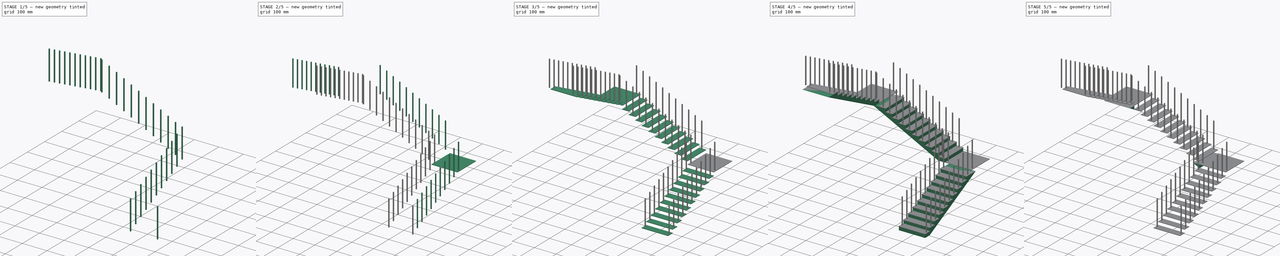
[diagram: build sequence overview — one tinted view per stage of 5, left to right]
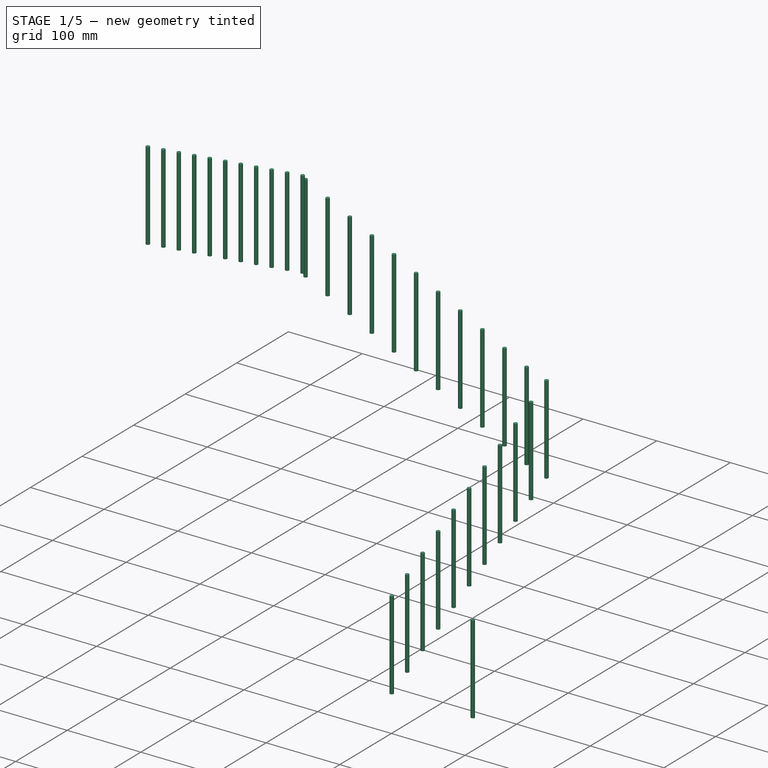
[diagram: stage 1 of 5 — iso view after this stage's code; geometry added in this stage tinted green]
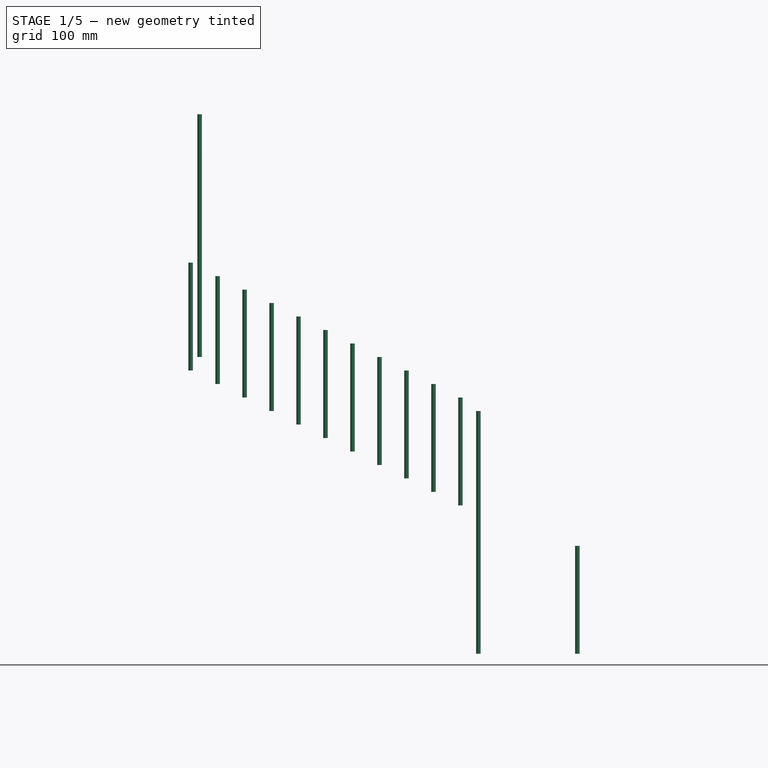
[diagram: stage 1 of 5 — front view after this stage's code; geometry added in this stage tinted green]
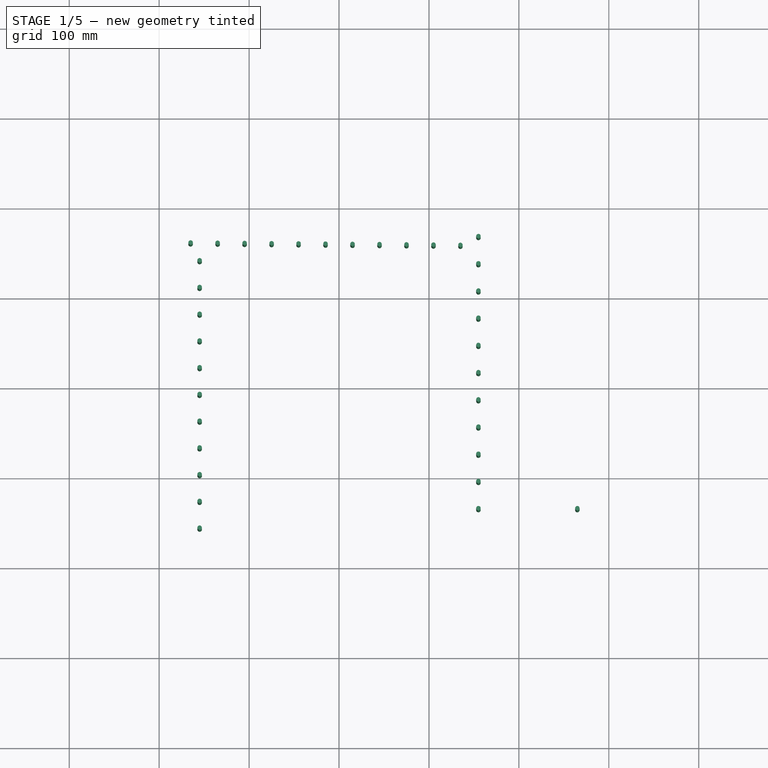
[diagram: stage 1 of 5 — top view after this stage's code; geometry added in this stage tinted green]
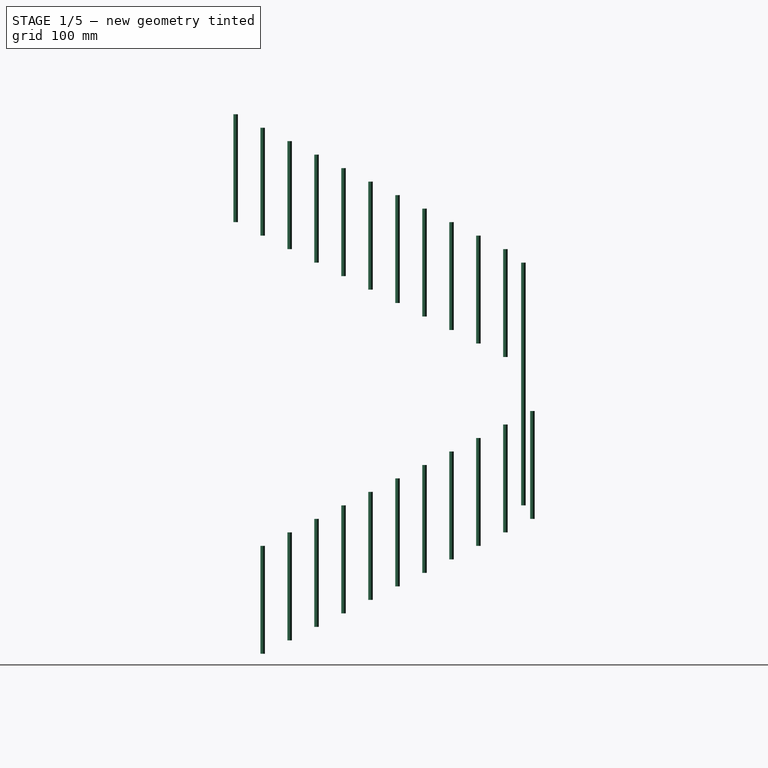
[diagram: stage 1 of 5 — right view after this stage's code; geometry added in this stage tinted green]
FCSTD DOCUMENT  (FreeCAD 0.16R6712 (Git))
Label: ESCADA_01
License: All rights reserved
LicenseURL: http://en.wikipedia.org/wiki/All_rights_reserved
objects: Part::FeaturePython×11, Part::Extrusion×7, Sketcher::SketchObject×4, Part::Circle×2, Part::Part2DObjectPython×1, Raytracing::LuxFeature×1, Raytracing::LuxProject×1, Part::Feature×1
note: 26 computed .brp shape members not serialized (recipe doc carries the construction recipe); baked Part::Feature solids carry a one-line shape summary decoded from their .brp

FEATURE [Raytracing::LuxFeature] Fusion_View
  Result = <blob: 13663 chars omitted>
  Transparency = 0
FEATURE [Raytracing::LuxProject] LuxProject
  Camera = # declares positon and view direction\n# Generated by FreeCAD (http://www.freecadweb.org/)\nLookAt 593.204 -548.205 833.204 6.10352e-05 44.9996 240 -0.408248 0.408248 0.816497
  Group = -> [Fusion_View]
FEATURE [Part::Circle] Circle
  Angle0 = 0
  Angle1 = 360
  Placement = pos=(265,-135,15) rot=(0,0,1;3.14159rad)
  Radius = 2.5
FEATURE [Part::Circle] Circle001
  Angle0 = 0
  Angle1 = 360
  Placement = pos=(155,-135,15) rot=(0,0,1;3.14159rad)
  Radius = 2.5
FEATURE [Part::Extrusion] Extrude_Circle  label="Circle_Extrude"
  Base = -> Circle
  Dir = (0,0,120)
  Solid = true
FEATURE [Part::Extrusion] Extrude_Circle001  label="Circle001_Extrude"
  Base = -> Circle001
  Dir = (0,0,120)
  Solid = true
FEATURE [Part::FeaturePython] Array008  # Draft array (typed FeaturePython)
  Angle = 360
  ArrayType = 0
  Axis = (0,0,1)
  Base = -> Extrude_Circle001
  Center = (0,0,0)
  Fuse = true
  IntervalAxis = (0,0,0)
  IntervalX = (1,0,0)
  IntervalY = (0,30,15)
  IntervalZ = (0,0,0)
  NumberPolar = 1
  NumberX = 1
  NumberY = 11
  NumberZ = 1
FEATURE [Part::FeaturePython] Array010  # Draft array (typed FeaturePython)
  Angle = 180
  ArrayType = 1
  Axis = (0,0,1)
  Base = -> Array008
  Center = (0,0,0)
  Fuse = true
  IntervalAxis = (0,0,165)
  IntervalX = (1,0,0)
  IntervalY = (0,1,0)
  IntervalZ = (0,0,0)
  NumberPolar = 3
  NumberX = 2
  NumberY = 2
  NumberZ = 1
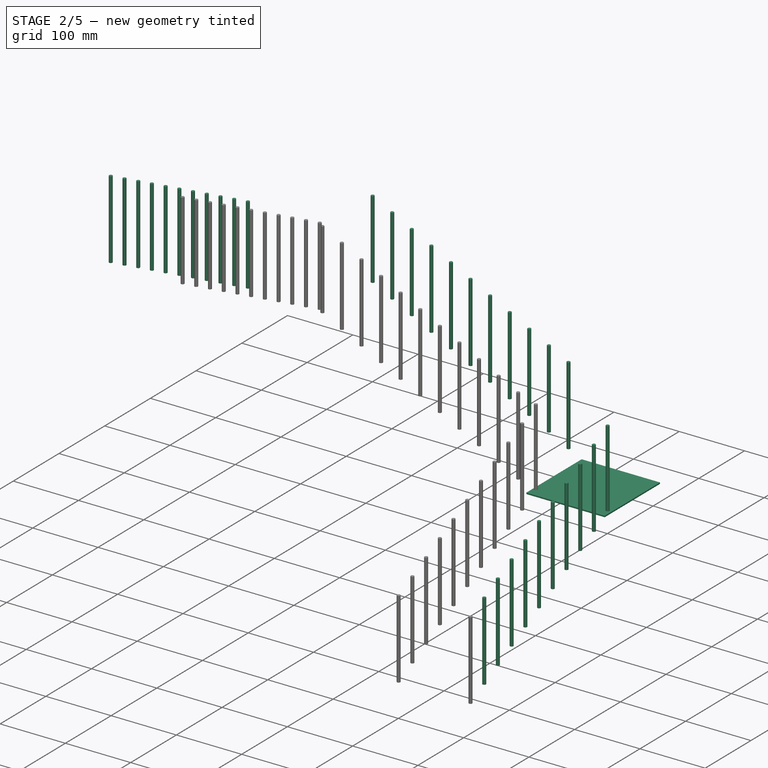
[diagram: stage 2 of 5 — iso view after this stage's code; geometry added in this stage tinted green]
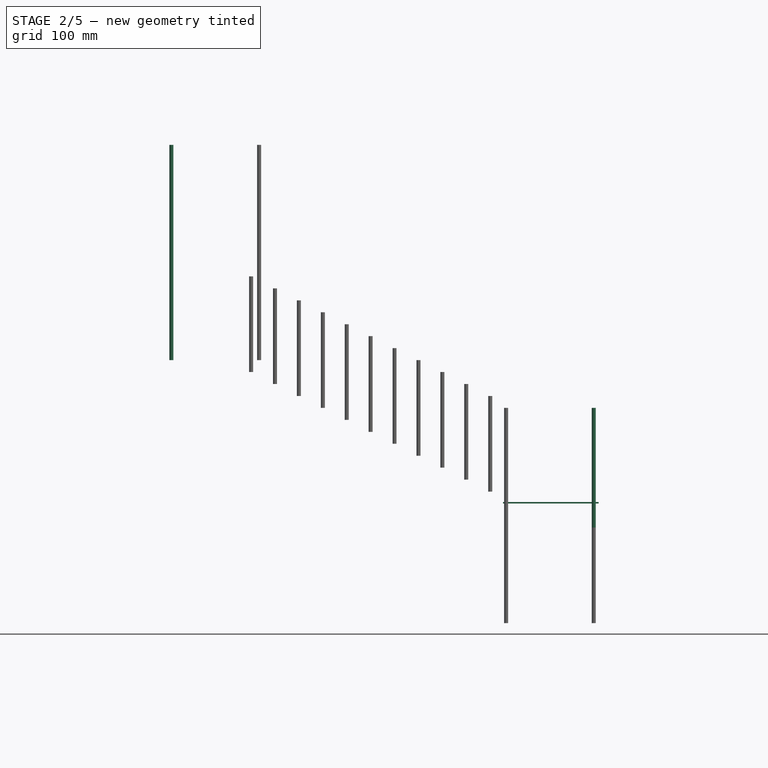
[diagram: stage 2 of 5 — front view after this stage's code; geometry added in this stage tinted green]
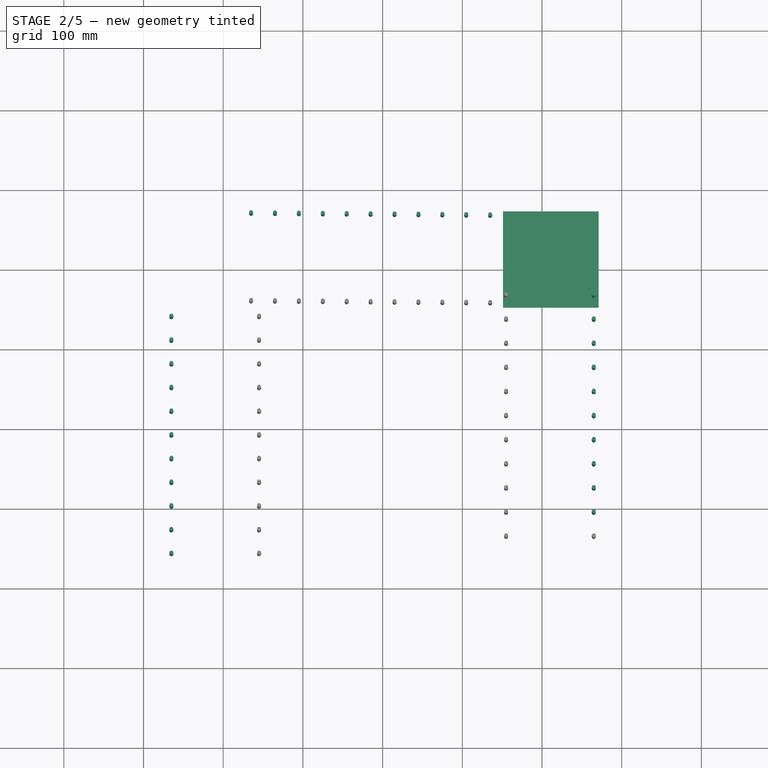
[diagram: stage 2 of 5 — top view after this stage's code; geometry added in this stage tinted green]
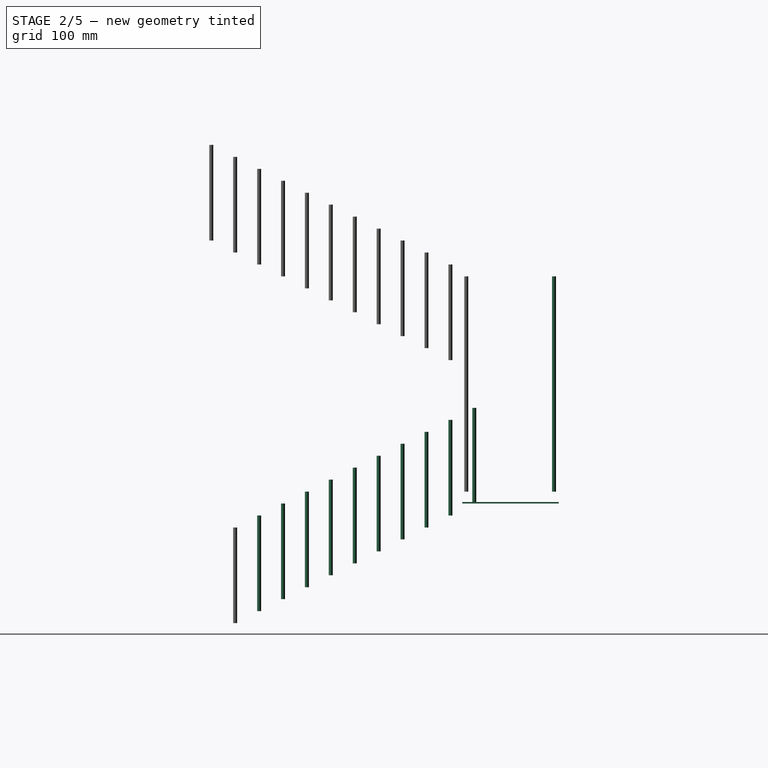
[diagram: stage 2 of 5 — right view after this stage's code; geometry added in this stage tinted green]
FEATURE [Sketcher::SketchObject] Sketch003
  Placement = pos=(0,0,165) rot=(0,0,1;0rad)
  sketch-geometry (4):
    g0: LineSegment StartX=271 StartY=150 StartZ=0 EndX=151 EndY=150 EndZ=0
    g1: LineSegment StartX=151 StartY=150 StartZ=0 EndX=151 EndY=271 EndZ=0
    g2: LineSegment StartX=151 StartY=271 StartZ=0 EndX=271 EndY=271 EndZ=0
    g3: LineSegment StartX=271 StartY=271 StartZ=0 EndX=271 EndY=150 EndZ=0
  constraints (8):
    c: Coincident(g0,g1)
    c: Coincident(g1,g2)
    c: Coincident(g2,g3)
    c: Coincident(g3,g0)
    c: Horizontal(g0)
    c: Horizontal(g2)
    c: Vertical(g1)
    c: Vertical(g3)
FEATURE [Part::Extrusion] Extrude_Sketch003  label="Sketch003_Extrude"
  Base = -> Sketch003
  Dir = (0,0,2)
  Solid = true
FEATURE [Part::FeaturePython] Array007  # Draft array (typed FeaturePython)
  Angle = 360
  ArrayType = 0
  Axis = (0,0,1)
  Base = -> Extrude_Circle
  Center = (0,0,0)
  Fuse = true
  IntervalAxis = (0,0,0)
  IntervalX = (0,0,0)
  IntervalY = (0,30,15)
  IntervalZ = (0,0,0)
  NumberPolar = 1
  NumberX = 1
  NumberY = 11
  NumberZ = 1
FEATURE [Part::Feature] Circle002
  Placement = pos=(265,270,165) rot=(0,0,1;3.14159rad)
  shape: bbox 3 x 3 x 2e-07 mm, 0 faces, 0 solids (baked)
FEATURE [Part::FeaturePython] Array009  # Draft array (typed FeaturePython)
  Angle = 180
  ArrayType = 1
  Axis = (0,0,1)
  Base = -> Array007
  Center = (0,0,0)
  Fuse = true
  IntervalAxis = (0,0,165)
  IntervalX = (1,0,0)
  IntervalY = (0,1,0)
  IntervalZ = (0,0,0)
  NumberPolar = 3
  NumberX = 2
  NumberY = 2
  NumberZ = 1
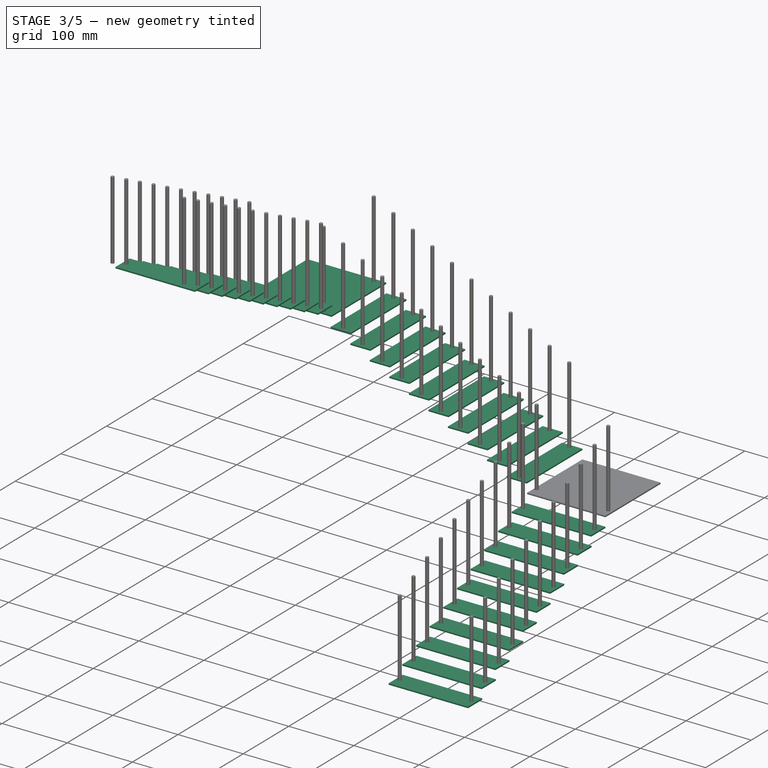
[diagram: stage 3 of 5 — iso view after this stage's code; geometry added in this stage tinted green]
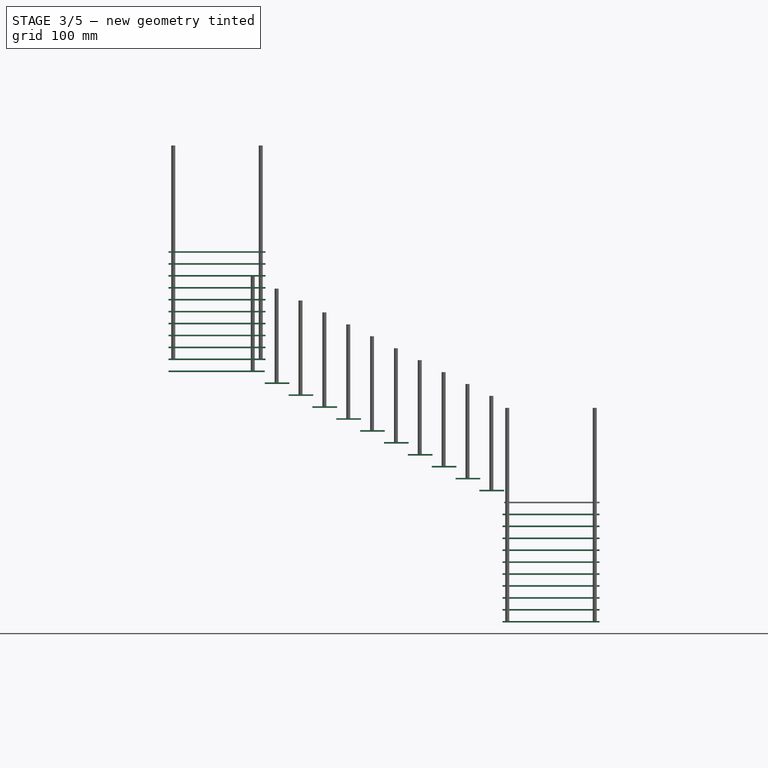
[diagram: stage 3 of 5 — front view after this stage's code; geometry added in this stage tinted green]
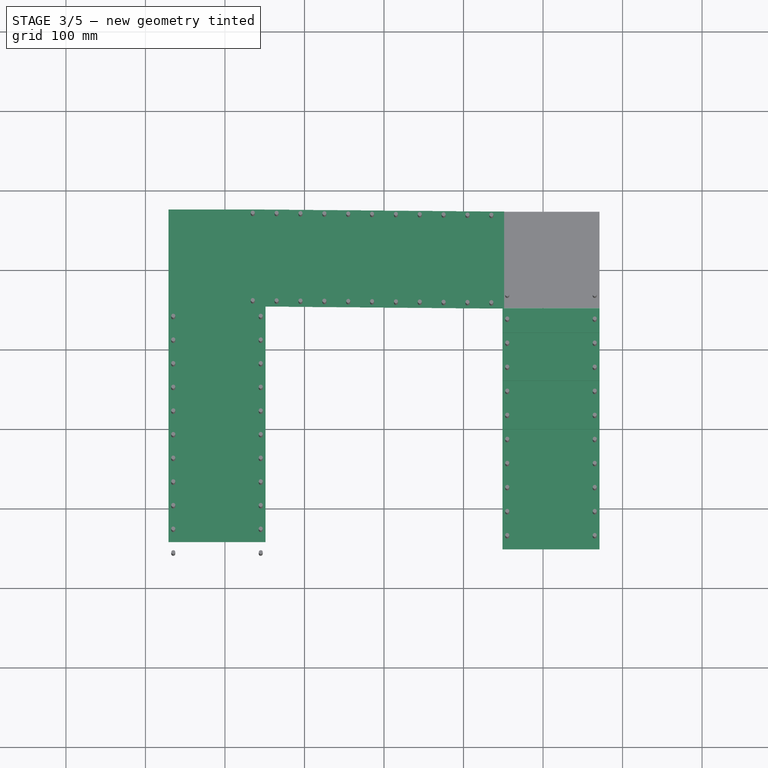
[diagram: stage 3 of 5 — top view after this stage's code; geometry added in this stage tinted green]
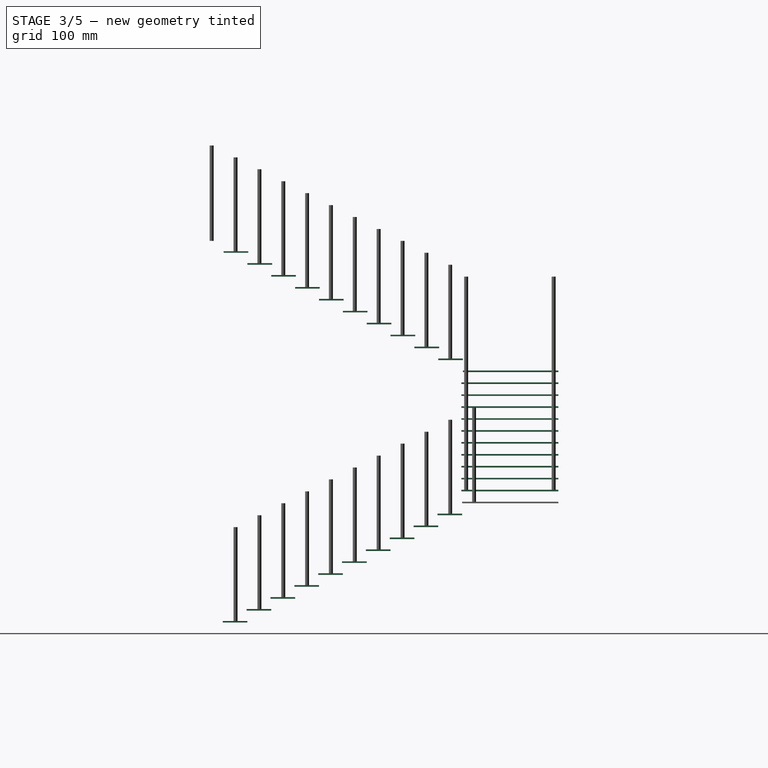
[diagram: stage 3 of 5 — right view after this stage's code; geometry added in this stage tinted green]
FEATURE [Sketcher::SketchObject] Sketch002
  Placement = pos=(0,0,15) rot=(0,0,1;0rad)
  sketch-geometry (4):
    g0: LineSegment StartX=149 StartY=-151 StartZ=0 EndX=271 EndY=-151 EndZ=0
    g1: LineSegment StartX=271 StartY=-151 StartZ=0 EndX=271 EndY=-120 EndZ=0
    g2: LineSegment StartX=271 StartY=-120 StartZ=0 EndX=149 EndY=-120 EndZ=0
    g3: LineSegment StartX=149 StartY=-120 StartZ=0 EndX=149 EndY=-151 EndZ=0
  constraints (8):
    c: Coincident(g0,g1)
    c: Coincident(g1,g2)
    c: Coincident(g2,g3)
    c: Coincident(g3,g0)
    c: Horizontal(g0)
    c: Horizontal(g2)
    c: Vertical(g1)
    c: Vertical(g3)
FEATURE [Part::Extrusion] Extrude_Sketch002  label="Sketch002_Extrude"
  Base = -> Sketch002
  Dir = (0,0,2)
  Solid = true
FEATURE [Part::FeaturePython] Array004  # Draft array (typed FeaturePython)
  Angle = 360
  ArrayType = 0
  Axis = (0,0,1)
  Base = -> Extrude_Sketch002
  Center = (0,0,0)
  Fuse = false
  IntervalAxis = (0,0,0)
  IntervalX = (1,0,0)
  IntervalY = (0,30,15)
  IntervalZ = (0,0,0)
  NumberPolar = 1
  NumberX = 1
  NumberY = 10
  NumberZ = 1
FEATURE [Part::FeaturePython] Array005  # Draft array (typed FeaturePython)
  Angle = 180
  ArrayType = 1
  Axis = (0,0,1)
  Base = -> Array004
  Center = (0,0,0)
  Fuse = true
  IntervalAxis = (0,0,165)
  IntervalX = (1,0,0)
  IntervalY = (0,1,0)
  IntervalZ = (0,0,0)
  NumberPolar = 3
  NumberX = 2
  NumberY = 2
  NumberZ = 1
FEATURE [Part::FeaturePython] Array006  # Draft array (typed FeaturePython)
  Angle = 90
  ArrayType = 1
  Axis = (0,0,1)
  Base = -> Extrude_Sketch003
  Center = (0,0,0)
  Fuse = true
  IntervalAxis = (0,0,165)
  IntervalX = (1,0,0)
  IntervalY = (0,1,0)
  IntervalZ = (0,0,0)
  NumberPolar = 2
  NumberX = 2
  NumberY = 2
  NumberZ = 1
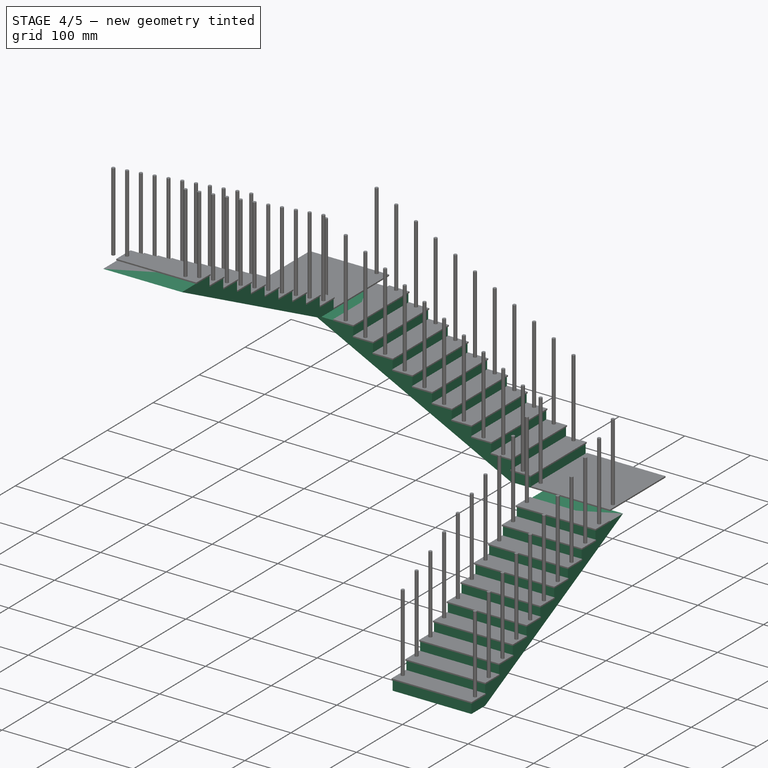
[diagram: stage 4 of 5 — iso view after this stage's code; geometry added in this stage tinted green]
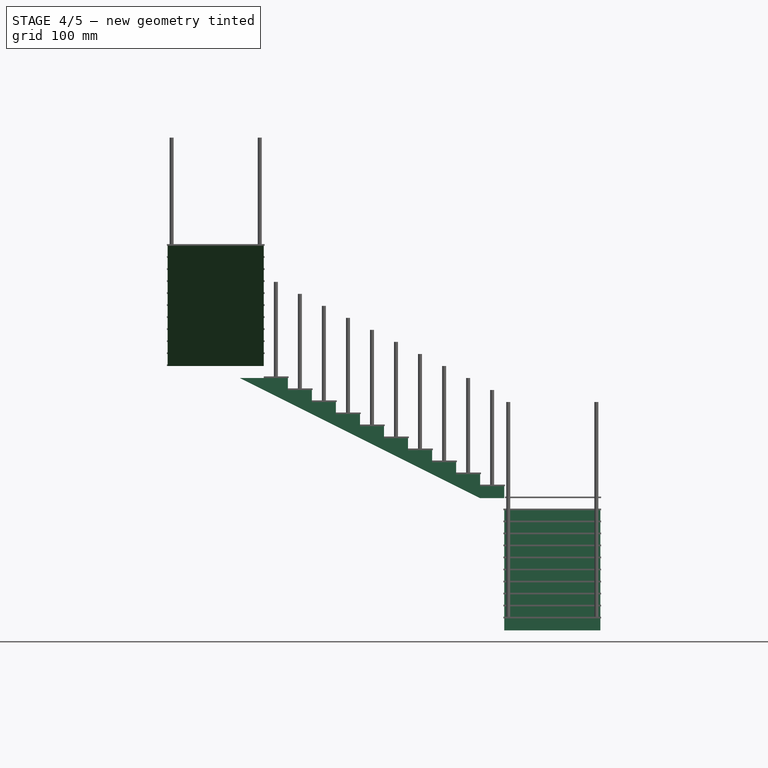
[diagram: stage 4 of 5 — front view after this stage's code; geometry added in this stage tinted green]
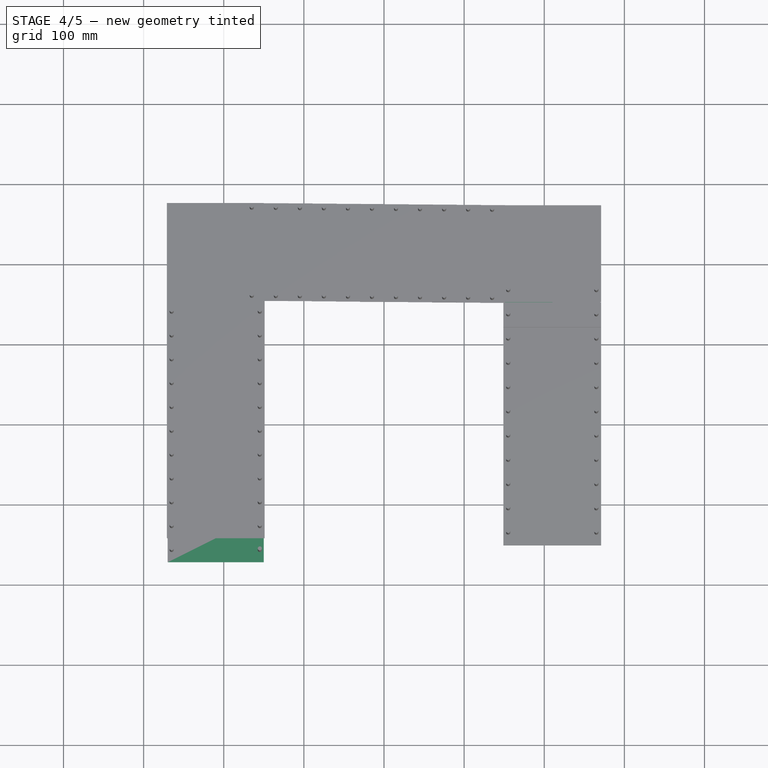
[diagram: stage 4 of 5 — top view after this stage's code; geometry added in this stage tinted green]
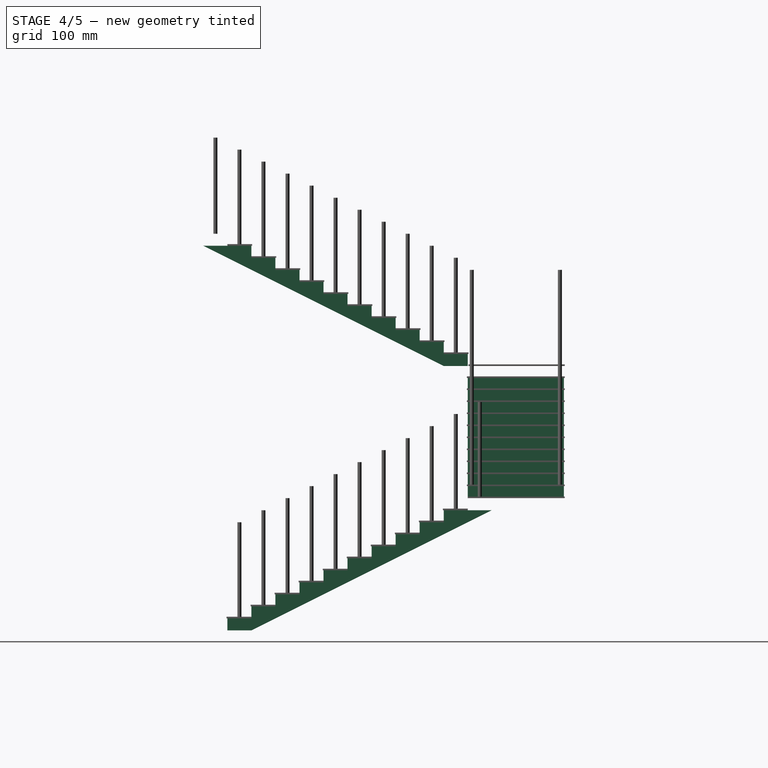
[diagram: stage 4 of 5 — right view after this stage's code; geometry added in this stage tinted green]
FEATURE [Sketcher::SketchObject] Sketch001
  Placement = pos=(270,0,0) rot=(0.57735,0.57735,0.57735;2.0944rad)
  sketch-geometry (4):
    g0: LineSegment StartX=-150 StartY=0 StartZ=0 EndX=-120 EndY=0 EndZ=0
    g1: LineSegment StartX=-120 StartY=0 StartZ=0 EndX=-90 EndY=15 EndZ=0
    g2: LineSegment StartX=-90 StartY=15 StartZ=0 EndX=-150 EndY=15 EndZ=0
    g3: LineSegment StartX=-150 StartY=15 StartZ=0 EndX=-150 EndY=0 EndZ=0
  constraints (8):
    c: PointOnObject(g0,g-1)
    c: Horizontal(g0)
    c: Coincident(g0,g1)
    c: Coincident(g1,g2)
    c: Horizontal(g2)
    c: Coincident(g2,g3)
    c: Coincident(g3,g0)
    c: Vertical(g3)
FEATURE [Part::Extrusion] Extrude001
  Base = -> Sketch001
  Dir = (-120,0,0)
  Solid = true
FEATURE [Part::FeaturePython] Array  # Draft array (typed FeaturePython)
  Angle = 360
  ArrayType = 0
  Axis = (0,0,1)
  Base = -> Extrude001
  Center = (0,0,0)
  Fuse = true
  IntervalAxis = (0,0,0)
  IntervalX = (1,0,0)
  IntervalY = (0,30,15)
  IntervalZ = (0,0,0)
  NumberPolar = 1
  NumberX = 1
  NumberY = 10
  NumberZ = 1
FEATURE [Part::FeaturePython] Array001  label="ESCADA"  # Draft array (typed FeaturePython)
  Angle = 180
  ArrayType = 1
  Axis = (0,0,1)
  Base = -> Array
  Center = (0,0,0)
  Fuse = true
  IntervalAxis = (0,0,165)
  IntervalX = (1,0,0)
  IntervalY = (0,1,0)
  IntervalZ = (0,0,0)
  NumberPolar = 3
  NumberX = 2
  NumberY = 2
  NumberZ = 1
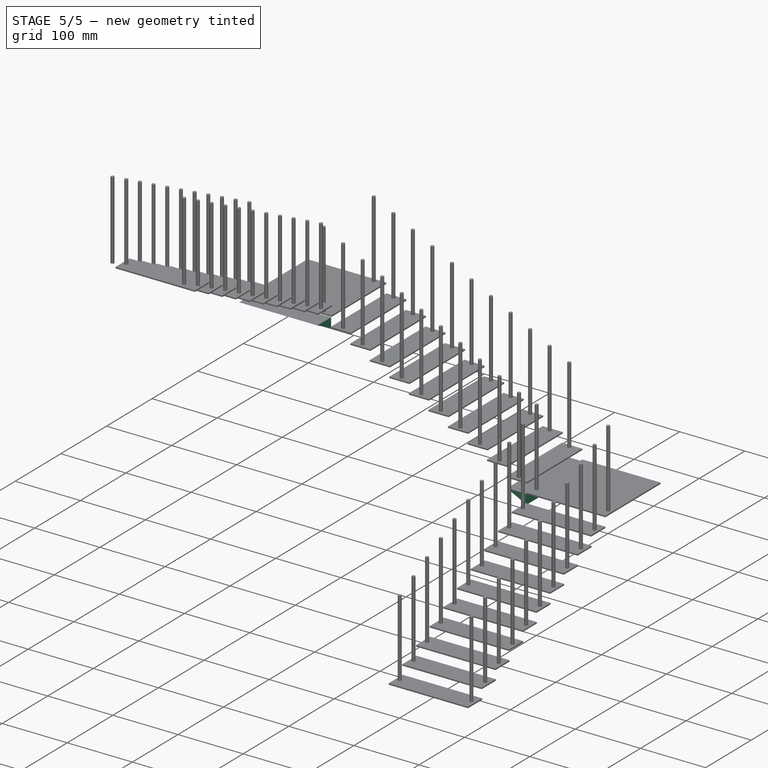
[diagram: stage 5 of 5 — iso view after this stage's code; geometry added in this stage tinted green]
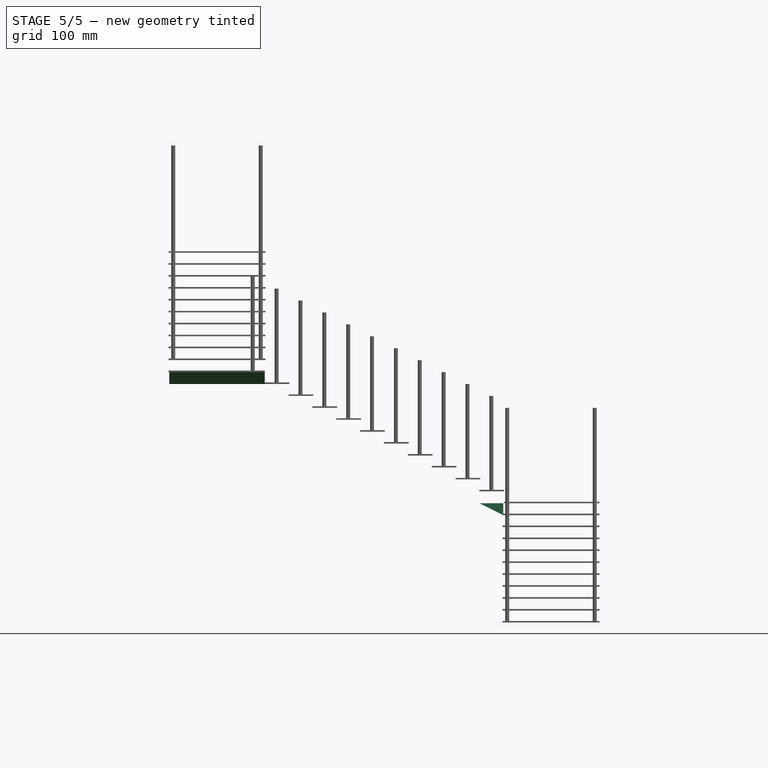
[diagram: stage 5 of 5 — front view after this stage's code; geometry added in this stage tinted green]
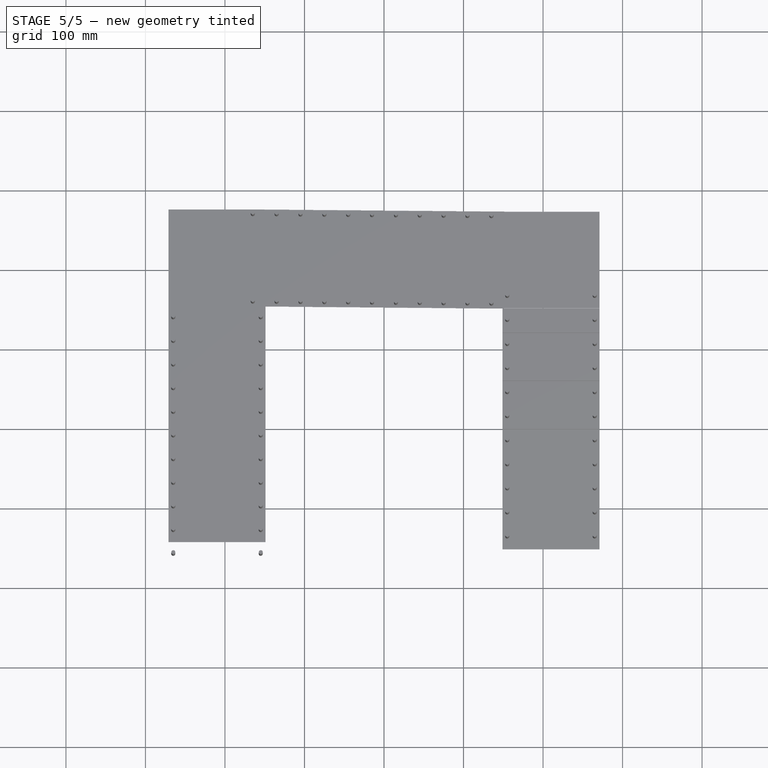
[diagram: stage 5 of 5 — top view after this stage's code; geometry added in this stage tinted green]
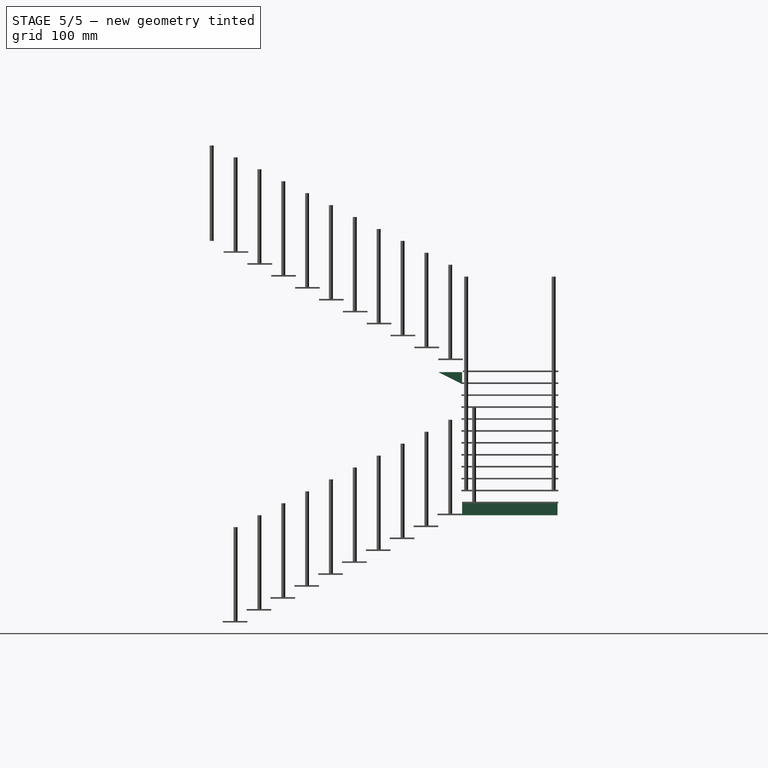
[diagram: stage 5 of 5 — right view after this stage's code; geometry added in this stage tinted green]
FEATURE [Sketcher::SketchObject] Sketch
  Placement = pos=(0,0,45) rot=(0,0,1;0rad)
  Support = -> Array001 [Face55]
  sketch-geometry (4):
    g0: LineSegment StartX=150 StartY=270 StartZ=0 EndX=270 EndY=270 EndZ=0
    g1: LineSegment StartX=270 StartY=270 StartZ=0 EndX=270 EndY=150 EndZ=0
    g2: LineSegment StartX=270 StartY=150 StartZ=0 EndX=150 EndY=150 EndZ=0
    g3: LineSegment StartX=150 StartY=150 StartZ=0 EndX=150 EndY=270 EndZ=0
  constraints (8):
    c: Coincident(g0,g1)
    c: Coincident(g1,g2)
    c: Coincident(g2,g3)
    c: Coincident(g3,g0)
    c: Horizontal(g0)
    c: Horizontal(g2)
    c: Vertical(g1)
    c: Vertical(g3)
FEATURE [Part::Extrusion] Extrude
  Base = -> Sketch
  Dir = (0,0,15)
  Placement = pos=(0,0,105) rot=(0,0,1;0rad)
  Solid = true
FEATURE [Part::FeaturePython] Array002  label="PATAMAR"  # Draft array (typed FeaturePython)
  Angle = 90
  ArrayType = 1
  Axis = (0,0,1)
  Base = -> Extrude
  Center = (0,0,0)
  Fuse = true
  IntervalAxis = (0,0,165)
  IntervalX = (1,0,0)
  IntervalY = (0,1,0)
  IntervalZ = (0,0,0)
  NumberPolar = 2
  NumberX = 2
  NumberY = 2
  NumberZ = 1
FEATURE [Part::Part2DObjectPython] DWire  # Draft 2D object (typed FeaturePython)
  ChamferSize = 0
  Closed = true
  End = (120,150,165)
  FilletRadius = 0
  Length = 78.541
  MakeFace = true
  Points = (4) [(120,150,165),(150,150,165),(150,150,150),(120,150,165)]
  Start = (120,150,165)
  Subdivisions = 0
  Support = -> Array002
FEATURE [Part::Extrusion] Extrude_DWire  label="DWire_Extrude"
  Base = -> DWire
  Dir = (0,120,0)
  Solid = true
FEATURE [Part::FeaturePython] Array003  label="ROTULA"  # Draft array (typed FeaturePython)
  Angle = 90
  ArrayType = 1
  Axis = (0,0,1)
  Base = -> Extrude_DWire
  Center = (0,0,0)
  Fuse = false
  IntervalAxis = (0,0,165)
  IntervalX = (1,0,0)
  IntervalY = (0,1,0)
  IntervalZ = (0,0,0)
  NumberPolar = 2
  NumberX = 2
  NumberY = 2
  NumberZ = 1
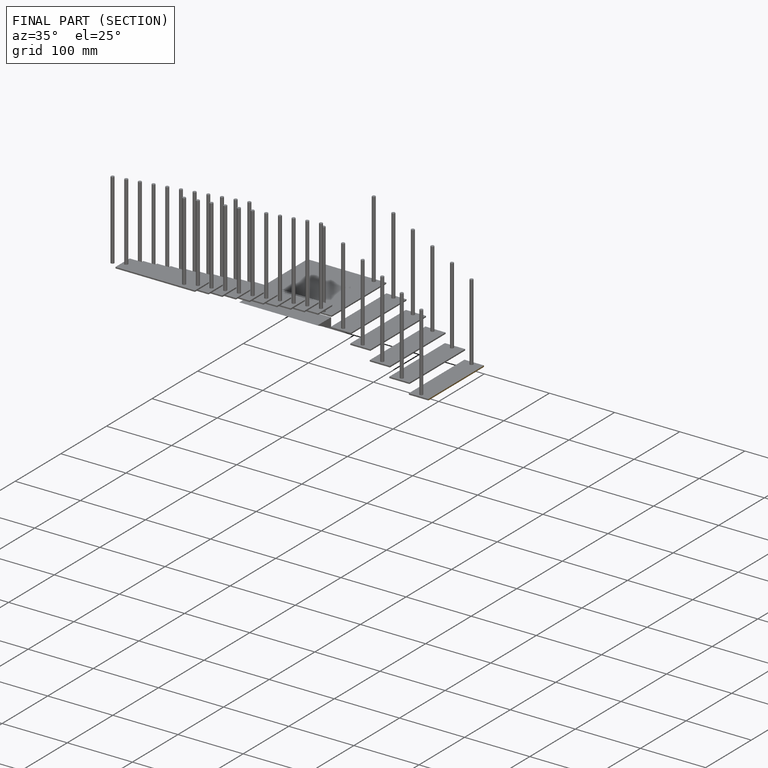
[diagram: finished part — half-section view (interior)]
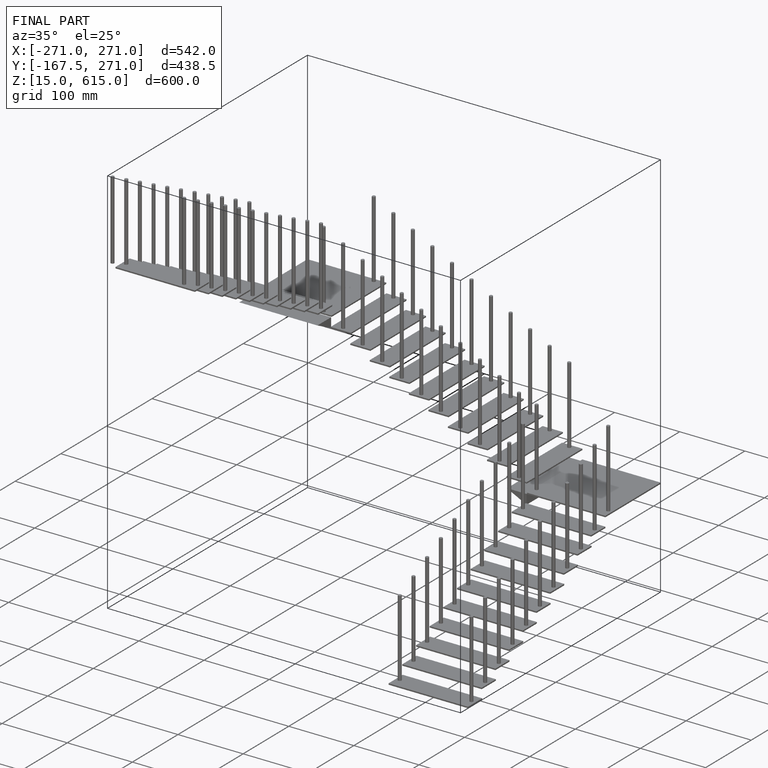
[diagram: finished part — iso view with bounding-box wireframe]
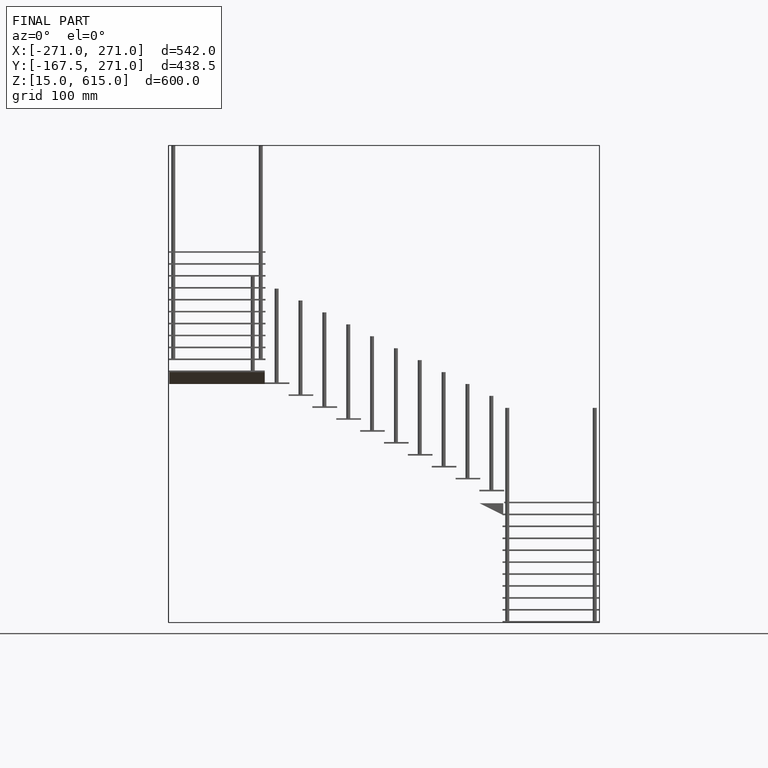
[diagram: finished part — front view with bounding-box wireframe]
